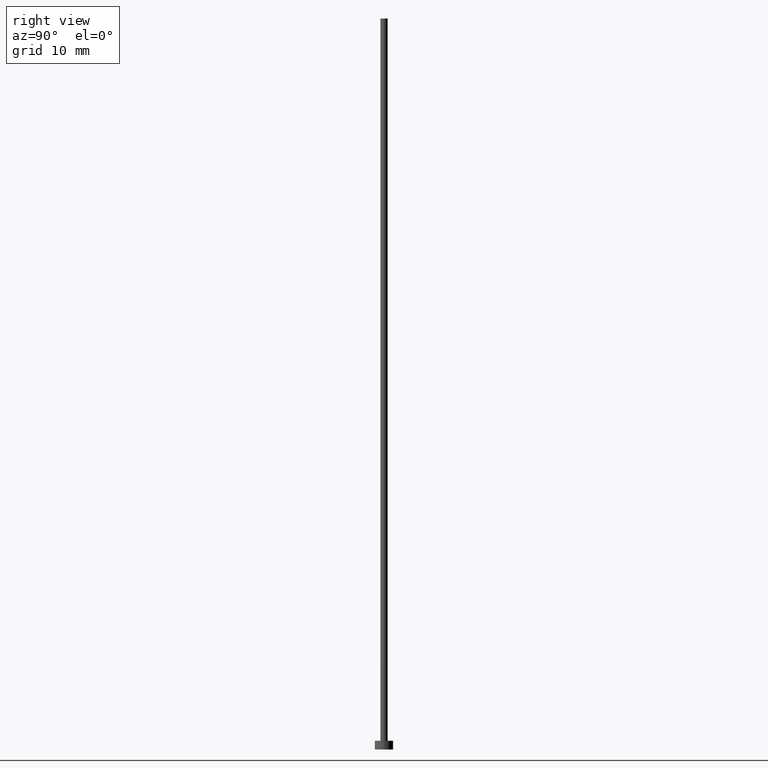
[diagram: clean part render]
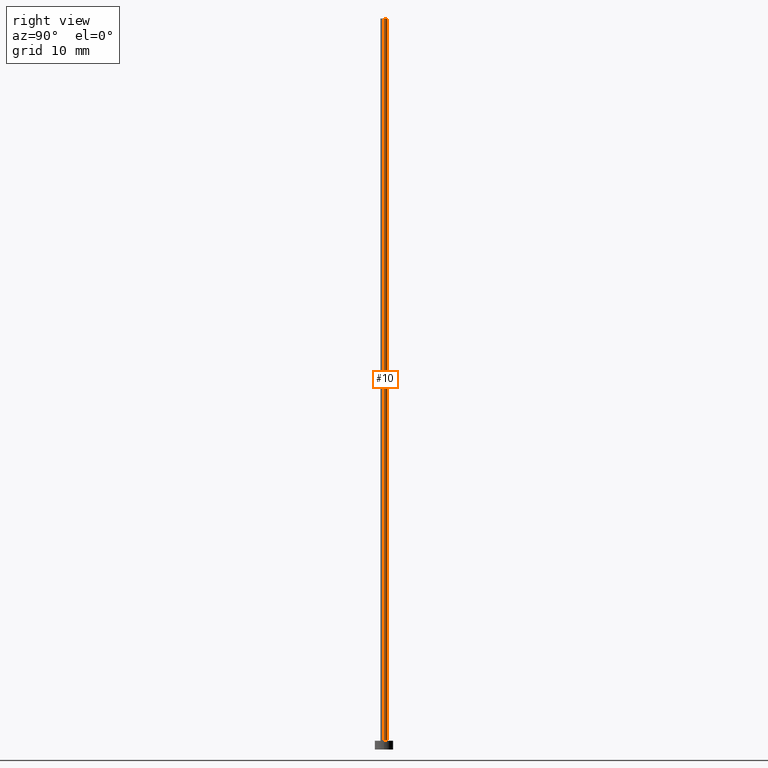
[diagram: same view with one face highlighted and labeled with its STEP entity id]
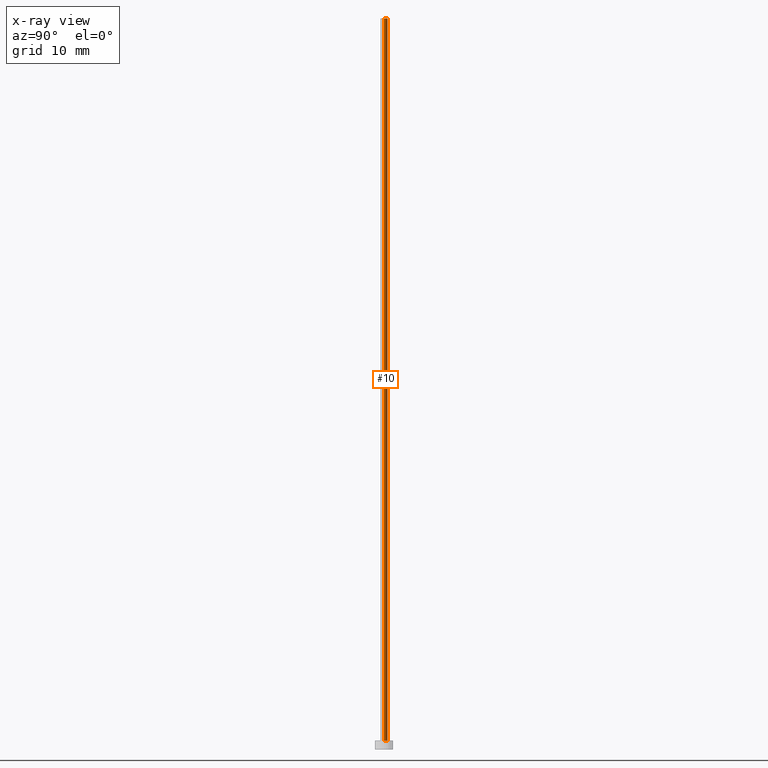
[diagram: x-ray of the same camera — body ghosted, the highlighted face saturated]
A machine part, right view. The second image highlights one B-rep face of the part: STEP entity #10.
The next image is the same camera in x-ray: the body ghosted, the highlighted face saturated — about 0% of this face is hidden behind the body in this view.
In plain terms, the highlighted cylindrical surface (edge-blend (fillet) strip) has radius 0.5 mm, axis along (-0, -0, -1).
Its self-contained STEP definition (entity closure, byte-faithful):
#1 = VERTEX_POINT ( 'NONE', #65 ) ;
#2 = CARTESIAN_POINT ( 'NONE',  ( 0.000000000000000000, 0.000000000000000000, 100.0000000000000000 ) ) ;
#10 = ADVANCED_FACE ( 'NONE', ( #157 ), #105, .T. ) ;
#13 = VECTOR ( 'NONE', #164, 1000.000000000000000 ) ;
#15 = ORIENTED_EDGE ( 'NONE', *, *, #143, .F. ) ;
#16 = VERTEX_POINT ( 'NONE', #251 ) ;
#22 = DIRECTION ( 'NONE',  ( 0.000000000000000000, 0.000000000000000000, 1.000000000000000000 ) ) ;
#25 = LINE ( 'NONE', #87, #119 ) ;
#30 = EDGE_CURVE ( 'NONE', #255, #219, #165, .T. ) ;
#44 = AXIS2_PLACEMENT_3D ( 'NONE', #194, #176, #81 ) ;
#50 = CARTESIAN_POINT ( 'NONE',  ( 0.000000000000000000, 0.000000000000000000, 1.199999999999999956 ) ) ;
#59 = AXIS2_PLACEMENT_3D ( 'NONE', #2, #178, #101 ) ;
#65 = CARTESIAN_POINT ( 'NONE',  ( 0.5000000000000000000, 6.123233995736766036E-17, 1.199999999999999956 ) ) ;
#71 = LINE ( 'NONE', #202, #13 ) ;
#81 = DIRECTION ( 'NONE',  ( 1.000000000000000000, 0.000000000000000000, 0.000000000000000000 ) ) ;
#83 = EDGE_LOOP ( 'NONE', ( #187, #237, #233, #15 ) ) ;
#87 = CARTESIAN_POINT ( 'NONE',  ( 0.5000000000000000000, 6.123233995736766036E-17, 100.0000000000000000 ) ) ;
#90 = EDGE_CURVE ( 'NONE', #1, #16, #244, .T. ) ;
#92 = AXIS2_PLACEMENT_3D ( 'NONE', #50, #22, #204 ) ;
#101 = DIRECTION ( 'NONE',  ( -1.000000000000000000, 0.000000000000000000, 0.000000000000000000 ) ) ;
#105 = CYLINDRICAL_SURFACE ( 'NONE', #59, 0.5000000000000000000 ) ;
#119 = VECTOR ( 'NONE', #222, 1000.000000000000000 ) ;
#123 = CARTESIAN_POINT ( 'NONE',  ( -0.5000000000000000000, 0.000000000000000000, 100.0000000000000000 ) ) ;
#143 = EDGE_CURVE ( 'NONE', #219, #16, #71, .T. ) ;
#157 = FACE_OUTER_BOUND ( 'NONE', #83, .T. ) ;
#162 = CARTESIAN_POINT ( 'NONE',  ( 0.5000000000000000000, 6.123233995736766036E-17, 100.0000000000000000 ) ) ;
#164 = DIRECTION ( 'NONE',  ( -0.000000000000000000, -0.000000000000000000, -1.000000000000000000 ) ) ;
#165 = CIRCLE ( 'NONE', #44, 0.5000000000000000000 ) ;
#176 = DIRECTION ( 'NONE',  ( 0.000000000000000000, 0.000000000000000000, 1.000000000000000000 ) ) ;
#178 = DIRECTION ( 'NONE',  ( -0.000000000000000000, -0.000000000000000000, -1.000000000000000000 ) ) ;
#187 = ORIENTED_EDGE ( 'NONE', *, *, #30, .F. ) ;
#194 = CARTESIAN_POINT ( 'NONE',  ( 0.000000000000000000, 0.000000000000000000, 100.0000000000000000 ) ) ;
#202 = CARTESIAN_POINT ( 'NONE',  ( -0.5000000000000000000, 0.000000000000000000, 100.0000000000000000 ) ) ;
#204 = DIRECTION ( 'NONE',  ( 1.000000000000000000, 0.000000000000000000, 0.000000000000000000 ) ) ;
#212 = EDGE_CURVE ( 'NONE', #255, #1, #25, .T. ) ;
#219 = VERTEX_POINT ( 'NONE', #123 ) ;
#222 = DIRECTION ( 'NONE',  ( -0.000000000000000000, -0.000000000000000000, -1.000000000000000000 ) ) ;
#233 = ORIENTED_EDGE ( 'NONE', *, *, #90, .T. ) ;
#237 = ORIENTED_EDGE ( 'NONE', *, *, #212, .T. ) ;
#244 = CIRCLE ( 'NONE', #92, 0.5000000000000000000 ) ;
#251 = CARTESIAN_POINT ( 'NONE',  ( -0.5000000000000000000, 0.000000000000000000, 1.199999999999999956 ) ) ;
#255 = VERTEX_POINT ( 'NONE', #162 ) ;